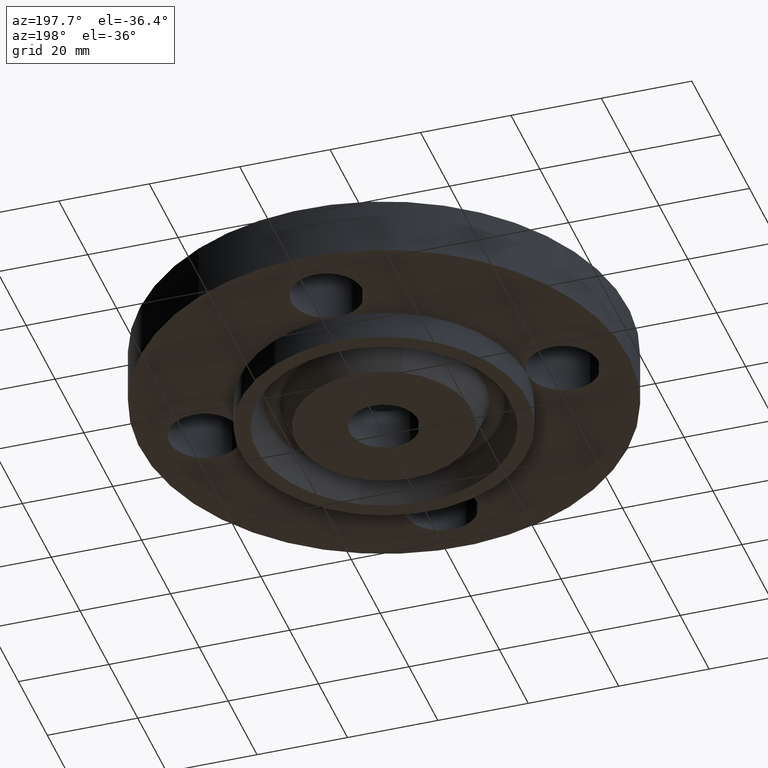
[diagram: clean part render]
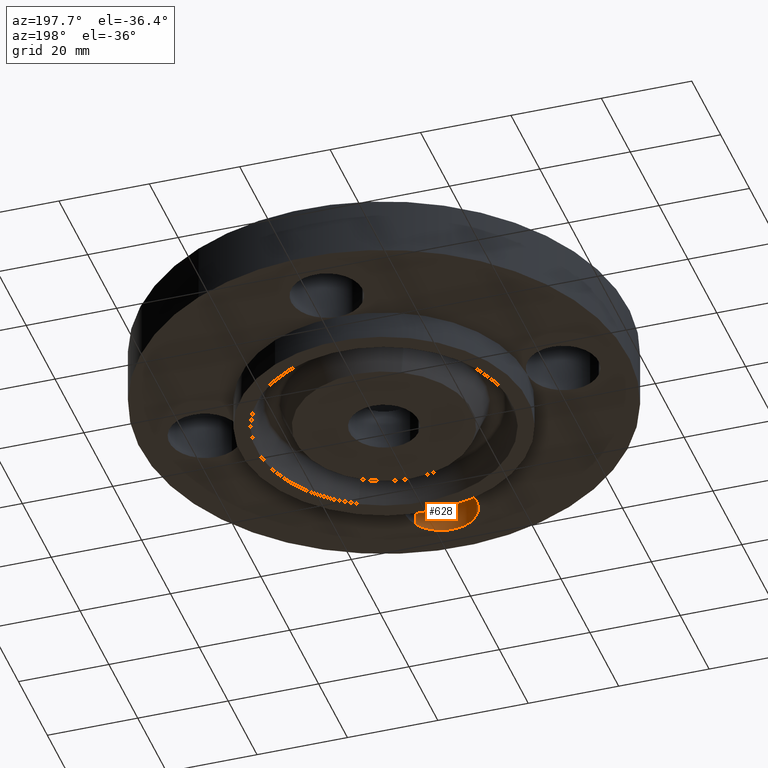
[diagram: same view with one face highlighted and labeled with its STEP entity id]
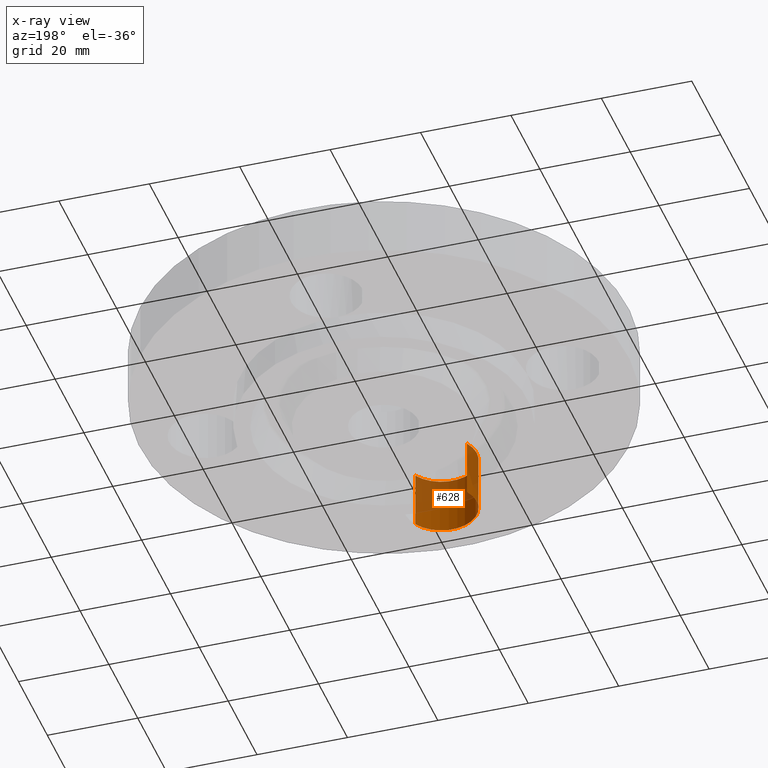
[diagram: x-ray of the same camera — body ghosted, the highlighted face saturated]
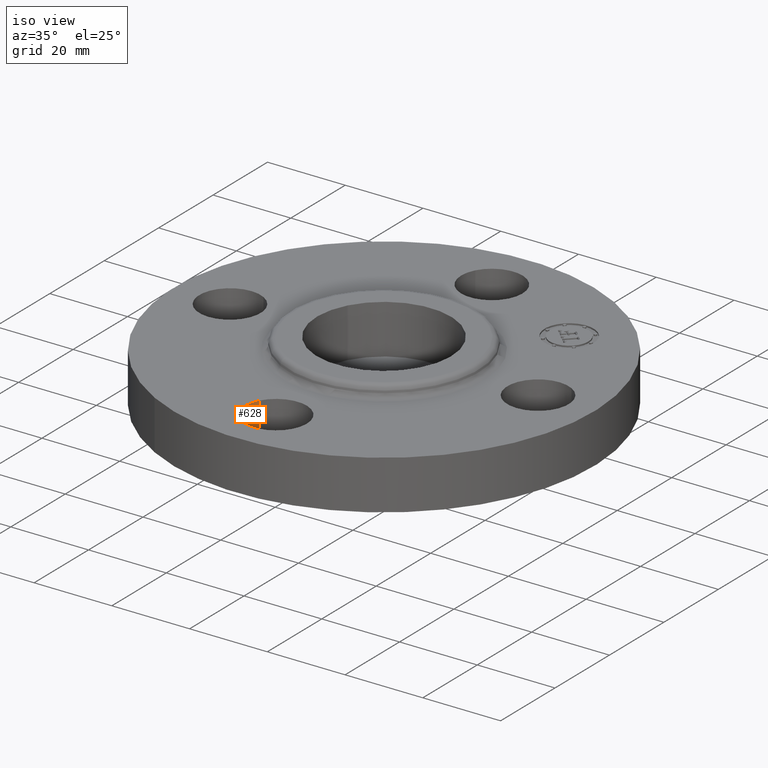
[diagram: same view with one face highlighted and labeled with its STEP entity id]
A machine part, auxiliary view. The second image highlights one B-rep face of the part: STEP entity #628.
The next image is the same camera in x-ray: the body ghosted, the highlighted face saturated — about 57% of this face is hidden behind the body in this view.
A second angle (iso view) of the same face is appended — the face is thin or edge-on in the first view.
In plain terms, the highlighted cylindrical surface (partial cylindrical patch) has radius 7.874 mm, axis along (-0, 0, -1).
Its self-contained STEP definition (entity closure, byte-faithful):
#335=AXIS2_PLACEMENT_3D('Circle Axis2P3D',#333,#334,$) ;
#601=AXIS2_PLACEMENT_3D('Cylinder Axis2P3D',#598,#599,#600) ;
#619=AXIS2_PLACEMENT_3D('Circle Axis2P3D',#617,#618,$) ;
#330=CARTESIAN_POINT('Vertex',(-0.272050594187,-1.41137808304,0.)) ;
#333=CARTESIAN_POINT('Axis2P3D Location',(4.54579506146E-016,-1.56000000001,0.)) ;
#337=CARTESIAN_POINT('Vertex',(0.272050594187,-1.70862191697,0.)) ;
#598=CARTESIAN_POINT('Axis2P3D Location',(1.91044900668E-016,-1.56000000001,0.496062992128)) ;
#603=CARTESIAN_POINT('Line Origine',(0.272050594187,-1.70862191697,0.250000000001)) ;
#607=CARTESIAN_POINT('Vertex',(0.272050594187,-1.70862191697,0.500000000002)) ;
#610=CARTESIAN_POINT('Line Origine',(-0.272050594187,-1.41137808304,0.250000000001)) ;
#614=CARTESIAN_POINT('Vertex',(-0.272050594187,-1.41137808304,0.500000000002)) ;
#617=CARTESIAN_POINT('Axis2P3D Location',(1.91044900668E-016,-1.56000000001,0.500000000002)) ;
#334=DIRECTION('Axis2P3D Direction',(0.,0.,-0.0393700787402)) ;
#599=DIRECTION('Axis2P3D Direction',(-0.,0.,-0.0393700787402)) ;
#600=DIRECTION('Axis2P3D XDirection',(-0.0345504945626,0.0188750212049,0.)) ;
#604=DIRECTION('Vector Direction',(0.,0.,-0.0393700787402)) ;
#611=DIRECTION('Vector Direction',(0.,0.,-0.0393700787402)) ;
#618=DIRECTION('Axis2P3D Direction',(-0.,0.,-0.0393700787402)) ;
#605=VECTOR('Line Direction',#604,0.0393700787402) ;
#612=VECTOR('Line Direction',#611,0.0393700787402) ;
#623=ORIENTED_EDGE('',*,*,#609,.F.) ;
#624=ORIENTED_EDGE('',*,*,#339,.T.) ;
#625=ORIENTED_EDGE('',*,*,#616,.T.) ;
#626=ORIENTED_EDGE('',*,*,#621,.F.) ;
#628=ADVANCED_FACE('PartBody',(#627),#602,.F.) ;
#336=CIRCLE('generated circle',#335,0.310000000001) ;
#620=CIRCLE('generated circle',#619,0.310000000001) ;
#602=CYLINDRICAL_SURFACE('generated cylinder',#601,0.310000000001) ;
#339=EDGE_CURVE('',#338,#331,#336,.T.) ;
#609=EDGE_CURVE('',#338,#608,#606,.F.) ;
#616=EDGE_CURVE('',#331,#615,#613,.F.) ;
#621=EDGE_CURVE('',#608,#615,#620,.T.) ;
#622=EDGE_LOOP('',(#623,#624,#625,#626)) ;
#627=FACE_OUTER_BOUND('',#622,.T.) ;
#606=LINE('Line',#603,#605) ;
#613=LINE('Line',#610,#612) ;
#331=VERTEX_POINT('',#330) ;
#338=VERTEX_POINT('',#337) ;
#608=VERTEX_POINT('',#607) ;
#615=VERTEX_POINT('',#614) ;